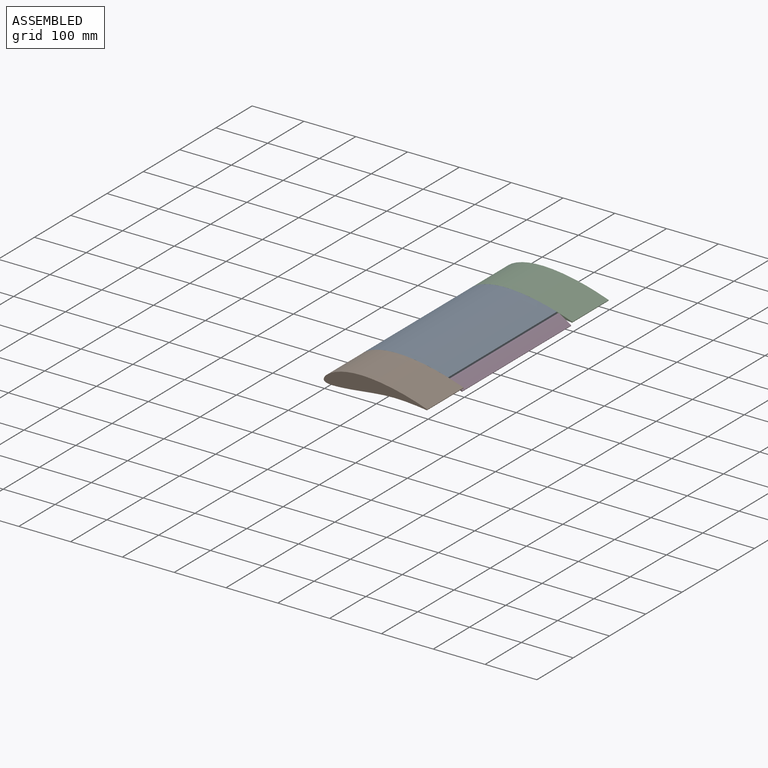
[diagram: assembled view]
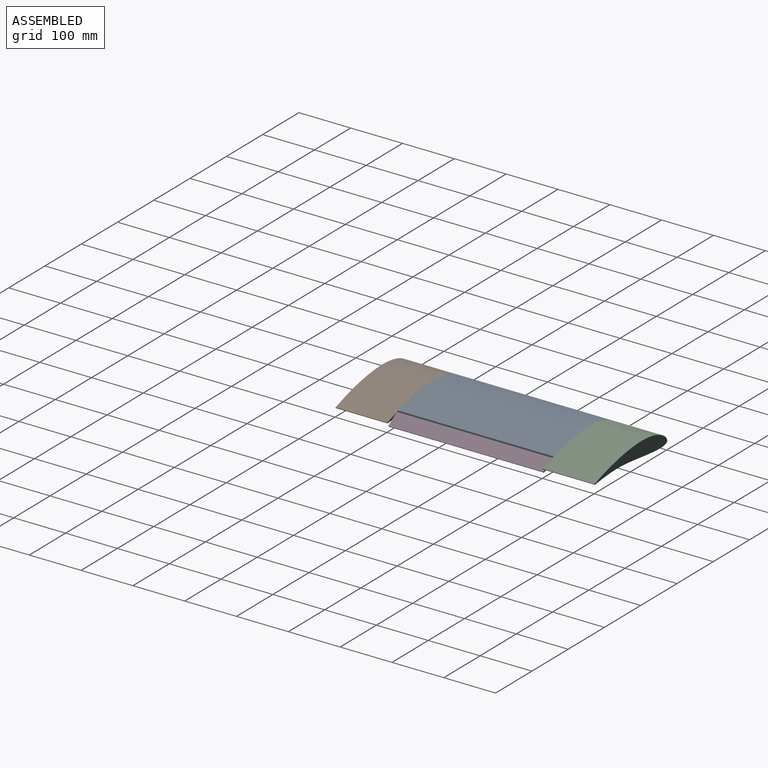
[diagram: assembled view, second angle]
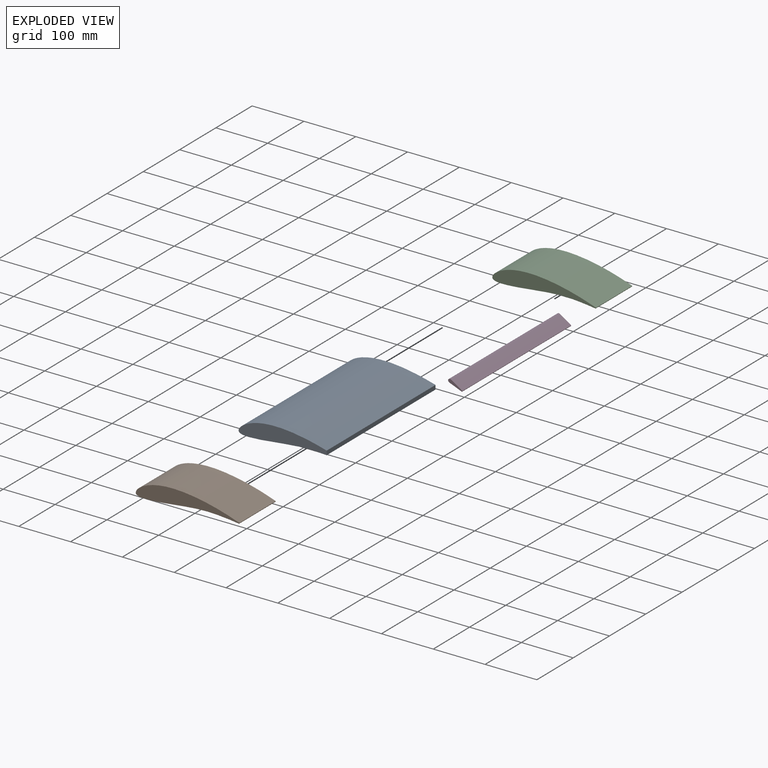
[diagram: exploded view]
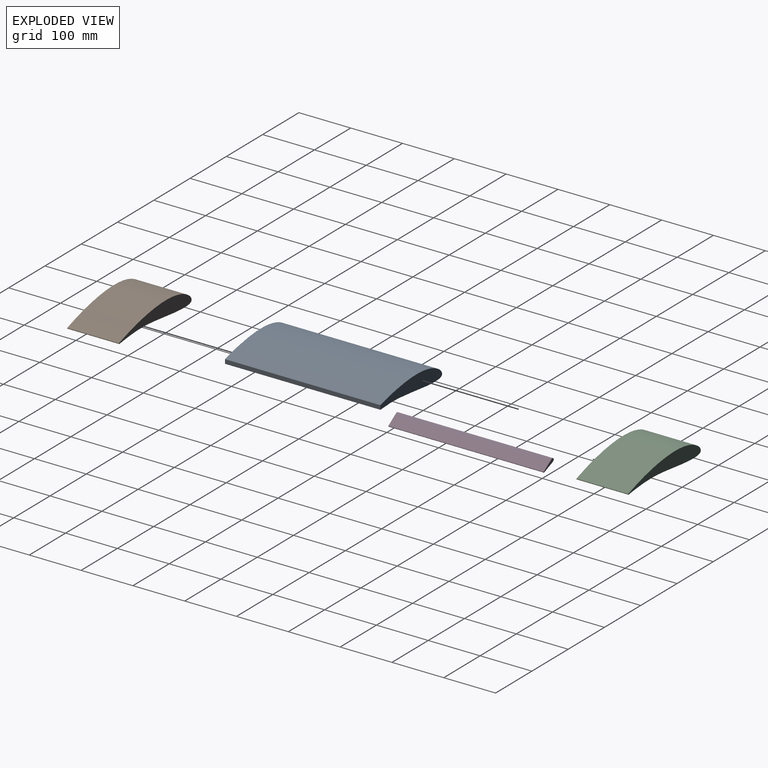
[diagram: exploded view, second angle]
ASSEMBLY  parts=4 mates=3
PART A: 5 faces, bbox 170x300x32.5 mm
  f0: plane 300x8.04mm, normal (1,0,0), area 2410.7mm2, adj f1,f2,f3,f4
  f1: extruded ~300x169.66mm, area 53207.1mm2, adj f0,f2,f3,f4
  f2: extruded ~300x168.41mm, area 52653.3mm2, adj f0,f1,f3,f4
  f3: plane 170.04x32.47mm, normal (0,-1,0), area 3589.5mm2, adj f0,f1,f2
  f4: plane 170.04x32.47mm, normal (0,1,0), area 3589.5mm2, adj f0,f1,f2
PART B: 4 faces, bbox 200.1x100x32.5 mm
  f0: extruded ~198.96x100mm, area 20755.9mm2, adj f1,f2,f3
  f1: extruded ~198.41x100mm, area 20632.2mm2, adj f0,f2,f3
  f2: plane 200.06x32.47mm, normal (0,-1,0), area 3351.7mm2, adj f0,f1
  f3: plane 200.06x32.47mm, normal (0,1,0), area 3351.7mm2, adj f0,f1
PART C: 4 faces, bbox 200.1x100x32.5 mm
  f0: extruded ~198.96x100mm, area 20755.9mm2, adj f1,f2,f3
  f1: extruded ~198.41x100mm, area 20632.2mm2, adj f0,f2,f3
  f2: plane 200.06x32.47mm, normal (0,1,0), area 3351.7mm2, adj f0,f1
  f3: plane 200.06x32.47mm, normal (0,-1,0), area 3351.7mm2, adj f0,f1
PART D: 6 faces, bbox 30x300x10.1 mm
  f0: plane 30x10.09mm, normal (0,1,0), area 84.4mm2, adj f2,f3,f4,f5
  f1: plane 30x10.09mm, normal (0,-1,0), area 84.4mm2, adj f2,f3,f4,f5
  f2: extruded ~300x24.84mm, area 7608.7mm2, adj f0,f1,f3,f4
  f3: extruded ~300x26.39mm, area 7600.1mm2, adj f0,f1,f2,f5
  f4: cylinder r=4mm len=300mm, axis (0,1,0), area 2093.3mm2, adj f0,f1,f2,f5
  f5: cylinder r=4mm len=300mm, axis (0,1,0), area 1623.3mm2, adj f0,f1,f3,f4
PLACE A t=(-1.59,0,-4.93)mm
PLACE B t=(-1.59,-500,-4.93)mm
PLACE C t=(-1.59,0,-4.93)mm
PLACE D rot(axis=(0,1,0),15deg) t=(2.75,0,40.05)mm
MATE revolute C.f3 <-> D.f0  axis (0,1,0) through (171.41,-100,1.07)mm
MATE fastened B.f3 <-> A.f3  axis (0,-1,0) through (0,-400,0)mm
MATE fastened A.f4 <-> C.f3  axis (0,1,0) through (0,-100,0)mm
